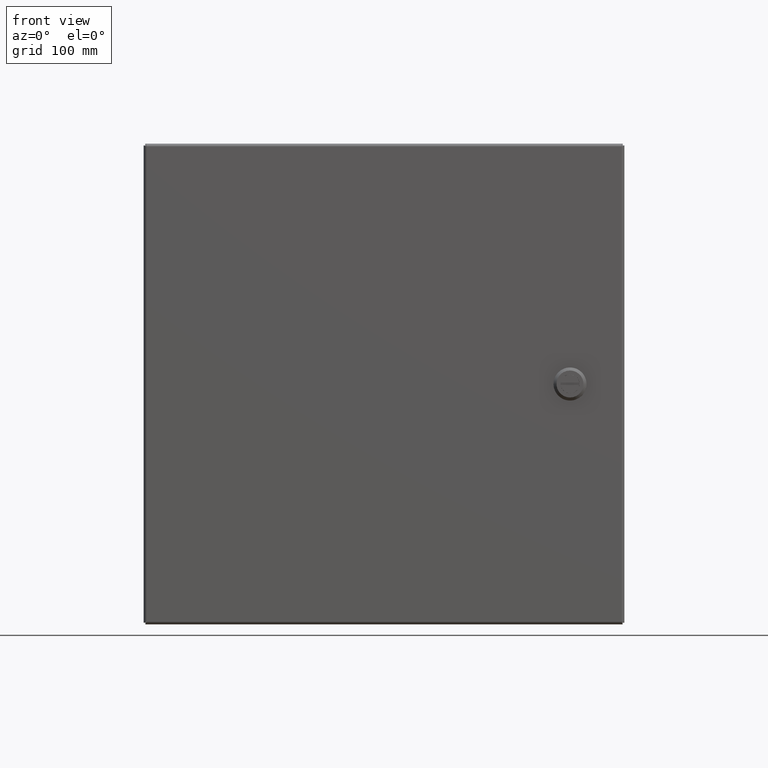
[diagram: clean part render]
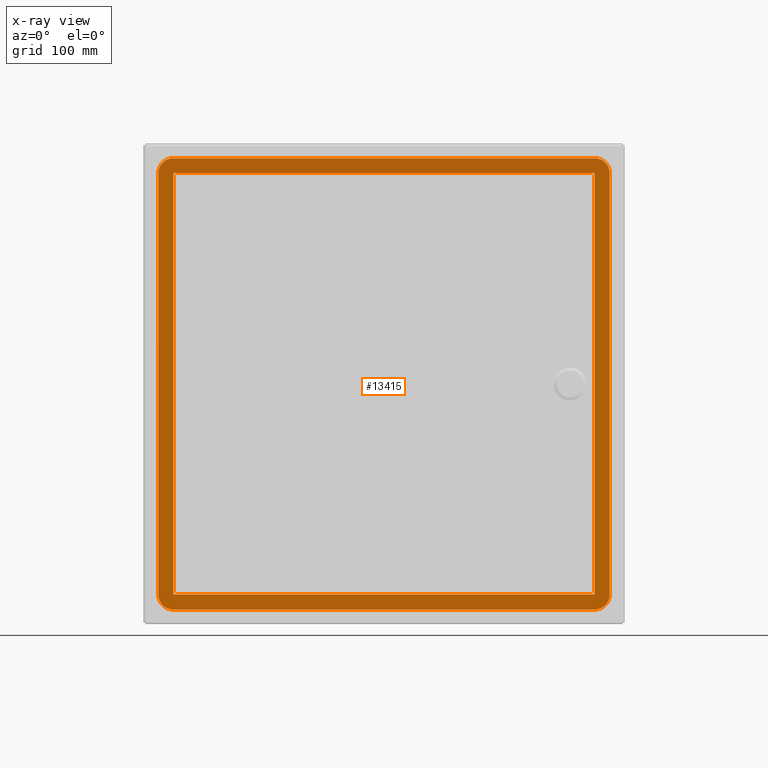
[diagram: x-ray — body ghosted, one internal face saturated and labeled with its STEP entity id]
A machine part, front view, then the same camera in x-ray: the body is ghosted and one INTERNAL B-rep face — a face not visible from any outside direction — is saturated and labeled: STEP entity #13415.
In plain terms, the highlighted planar face has unit normal (-0, -1, -0).
Its self-contained STEP definition (entity closure, byte-faithful):
#87 = CARTESIAN_POINT ( 'NONE',  ( -7.511500000000118860, -8.764000000000001123, 7.011500000000038924 ) ) ;
#237 = ORIENTED_EDGE ( 'NONE', *, *, #7801, .T. ) ;
#320 = CARTESIAN_POINT ( 'NONE',  ( 7.011500000000078003, -8.764000000000002899, 7.011499999999961652 ) ) ;
#414 = LINE ( 'NONE', #17797, #2215 ) ;
#735 = AXIS2_PLACEMENT_3D ( 'NONE', #15176, #6623, #15412 ) ;
#1107 = AXIS2_PLACEMENT_3D ( 'NONE', #320, #8739, #13534 ) ;
#1111 = VERTEX_POINT ( 'NONE', #19630 ) ;
#1143 = VECTOR ( 'NONE', #21447, 39.37007874015748143 ) ;
#1185 = AXIS2_PLACEMENT_3D ( 'NONE', #10448, #17222, #6991 ) ;
#1288 = EDGE_CURVE ( 'NONE', #2694, #11097, #3061, .T. ) ;
#1366 = ORIENTED_EDGE ( 'NONE', *, *, #16246, .T. ) ;
#1532 = FACE_BOUND ( 'NONE', #20458, .T. ) ;
#2215 = VECTOR ( 'NONE', #3628, 39.37007874015748143 ) ;
#2453 = CARTESIAN_POINT ( 'NONE',  ( 7.511499999999961652, -8.764000000000002899, 7.011500000000040700 ) ) ;
#2600 = CIRCLE ( 'NONE', #14629, 0.5000000000000444089 ) ;
#2694 = VERTEX_POINT ( 'NONE', #4901 ) ;
#2728 = ORIENTED_EDGE ( 'NONE', *, *, #21304, .T. ) ;
#2885 = LINE ( 'NONE', #14755, #7531 ) ;
#2974 = LINE ( 'NONE', #12967, #12463 ) ;
#3049 = AXIS2_PLACEMENT_3D ( 'NONE', #6687, #18602, #11496 ) ;
#3061 = CIRCLE ( 'NONE', #3049, 0.5000000000000444089 ) ;
#3628 = DIRECTION ( 'NONE',  ( 1.700360724987860073E-16, 3.998384937250164225E-17, -1.000000000000000000 ) ) ;
#3791 = ORIENTED_EDGE ( 'NONE', *, *, #5555, .T. ) ;
#4050 = VERTEX_POINT ( 'NONE', #11048 ) ;
#4614 = VECTOR ( 'NONE', #10788, 39.37007874015748143 ) ;
#4901 = CARTESIAN_POINT ( 'NONE',  ( -7.011500000000079780, -8.764000000000001123, 7.511500000000038924 ) ) ;
#5081 = LINE ( 'NONE', #87, #21092 ) ;
#5324 = VERTEX_POINT ( 'NONE', #15910 ) ;
#5555 = EDGE_CURVE ( 'NONE', #5324, #20802, #9204, .T. ) ;
#5778 = DIRECTION ( 'NONE',  ( 8.326672684688680216E-17, -1.000000000000000000, -3.998384937250280089E-17 ) ) ;
#5779 = VERTEX_POINT ( 'NONE', #10301 ) ;
#6275 = CARTESIAN_POINT ( 'NONE',  ( -7.511500000000118860, -8.764000000000001123, 7.511499999999999844 ) ) ;
#6373 = CARTESIAN_POINT ( 'NONE',  ( -7.511500000000119748, -8.764000000000001123, 7.011500000000059352 ) ) ;
#6598 = ORIENTED_EDGE ( 'NONE', *, *, #18963, .T. ) ;
#6623 = DIRECTION ( 'NONE',  ( -1.004302930252162036E-16, -1.000000000000000000, -3.998384937250166074E-17 ) ) ;
#6687 = CARTESIAN_POINT ( 'NONE',  ( -7.011500000000079780, -8.764000000000001123, 7.011500000000038924 ) ) ;
#6722 = DIRECTION ( 'NONE',  ( 1.700360724987860073E-16, 3.998384937250164225E-17, -1.000000000000000000 ) ) ;
#6991 = DIRECTION ( 'NONE',  ( 1.000000000000000000, 0.0000000000000000000, 0.0000000000000000000 ) ) ;
#7193 = CIRCLE ( 'NONE', #1185, 0.5000000000000444089 ) ;
#7397 = EDGE_CURVE ( 'NONE', #20802, #15439, #14216, .T. ) ;
#7531 = VECTOR ( 'NONE', #12889, 39.37007874015748143 ) ;
#7801 = EDGE_CURVE ( 'NONE', #15682, #4050, #2974, .T. ) ;
#8739 = DIRECTION ( 'NONE',  ( 8.326672684688680216E-17, -1.000000000000000000, -3.998384937250280089E-17 ) ) ;
#9204 = LINE ( 'NONE', #2453, #4614 ) ;
#9411 = CARTESIAN_POINT ( 'NONE',  ( 7.511500000000043364, -8.764000000000002899, 7.011499999999959876 ) ) ;
#9605 = DIRECTION ( 'NONE',  ( -1.000000000000000000, 1.004302930252162159E-16, -1.700360724987860073E-16 ) ) ;
#10003 = EDGE_CURVE ( 'NONE', #1111, #20023, #14446, .T. ) ;
#10301 = CARTESIAN_POINT ( 'NONE',  ( 7.011500000000105537, -8.764000000000001123, 7.011500000000044253 ) ) ;
#10448 = CARTESIAN_POINT ( 'NONE',  ( 7.011499999999922572, -8.764000000000002899, -7.011500000000038924 ) ) ;
#10788 = DIRECTION ( 'NONE',  ( -1.700360724987860073E-16, -3.998384937250164225E-17, 1.000000000000000000 ) ) ;
#10927 = ORIENTED_EDGE ( 'NONE', *, *, #7397, .T. ) ;
#10928 = CARTESIAN_POINT ( 'NONE',  ( -7.511500000000159716, -8.764000000000001123, -7.011500000000039812 ) ) ;
#11048 = CARTESIAN_POINT ( 'NONE',  ( 7.011499999999923460, -8.764000000000002899, -7.511500000000089550 ) ) ;
#11097 = VERTEX_POINT ( 'NONE', #6373 ) ;
#11215 = CARTESIAN_POINT ( 'NONE',  ( -7.011500000000132182, -8.764000000000001123, 7.011500000000074451 ) ) ;
#11314 = ORIENTED_EDGE ( 'NONE', *, *, #20158, .T. ) ;
#11363 = DIRECTION ( 'NONE',  ( 1.000000000000000000, -1.004302930252162159E-16, 1.700360724987860073E-16 ) ) ;
#11496 = DIRECTION ( 'NONE',  ( 1.000000000000000000, 0.0000000000000000000, 0.0000000000000000000 ) ) ;
#11807 = LINE ( 'NONE', #13581, #20960 ) ;
#11861 = PLANE ( 'NONE',  #735 ) ;
#12322 = EDGE_CURVE ( 'NONE', #11097, #17380, #5081, .T. ) ;
#12463 = VECTOR ( 'NONE', #18060, 39.37007874015748143 ) ;
#12559 = DIRECTION ( 'NONE',  ( 1.000000000000000000, 0.0000000000000000000, 0.0000000000000000000 ) ) ;
#12773 = CARTESIAN_POINT ( 'NONE',  ( -7.511500000000117083, -8.764000000000001123, -7.011500000000119748 ) ) ;
#12889 = DIRECTION ( 'NONE',  ( -1.700360724987860073E-16, -3.998384937250164225E-17, 1.000000000000000000 ) ) ;
#12910 = ORIENTED_EDGE ( 'NONE', *, *, #18826, .T. ) ;
#12967 = CARTESIAN_POINT ( 'NONE',  ( -7.511500000000117083, -8.764000000000001123, -7.511500000000079780 ) ) ;
#13415 = ADVANCED_FACE ( 'NONE', ( #1532, #14961 ), #11861, .T. ) ;
#13534 = DIRECTION ( 'NONE',  ( 1.000000000000000000, 0.0000000000000000000, 0.0000000000000000000 ) ) ;
#13581 = CARTESIAN_POINT ( 'NONE',  ( -7.511500000000118860, -8.764000000000001123, 7.011500000000078003 ) ) ;
#13776 = EDGE_LOOP ( 'NONE', ( #2728, #14680, #21877, #21350, #237, #12910, #3791, #10927 ) ) ;
#14100 = CARTESIAN_POINT ( 'NONE',  ( -7.011500000000155275, -8.764000000000001123, -7.511500000000090438 ) ) ;
#14112 = CARTESIAN_POINT ( 'NONE',  ( -7.011500000000156163, -8.764000000000001123, -7.011500000000040700 ) ) ;
#14216 = CIRCLE ( 'NONE', #1107, 0.5000000000000444089 ) ;
#14446 = LINE ( 'NONE', #12773, #1143 ) ;
#14629 = AXIS2_PLACEMENT_3D ( 'NONE', #14112, #5778, #12559 ) ;
#14666 = CARTESIAN_POINT ( 'NONE',  ( 7.011500000000078003, -8.764000000000002899, 7.511500000000022048 ) ) ;
#14680 = ORIENTED_EDGE ( 'NONE', *, *, #1288, .T. ) ;
#14755 = CARTESIAN_POINT ( 'NONE',  ( -7.011500000000197907, -8.764000000000001123, 7.011500000000038924 ) ) ;
#14961 = FACE_OUTER_BOUND ( 'NONE', #13776, .T. ) ;
#15176 = CARTESIAN_POINT ( 'NONE',  ( -7.511500000000118860, -8.764000000000001123, 7.011500000000038924 ) ) ;
#15412 = DIRECTION ( 'NONE',  ( 1.000000000000000000, -1.004302930252162159E-16, 1.700360724987860073E-16 ) ) ;
#15439 = VERTEX_POINT ( 'NONE', #14666 ) ;
#15682 = VERTEX_POINT ( 'NONE', #14100 ) ;
#15910 = CARTESIAN_POINT ( 'NONE',  ( 7.511499999999974087, -8.764000000000002899, -7.011500000000038924 ) ) ;
#16246 = EDGE_CURVE ( 'NONE', #18926, #5779, #11807, .T. ) ;
#17222 = DIRECTION ( 'NONE',  ( 8.326672684688680216E-17, -1.000000000000000000, -3.998384937250280089E-17 ) ) ;
#17380 = VERTEX_POINT ( 'NONE', #10928 ) ;
#17797 = CARTESIAN_POINT ( 'NONE',  ( 7.011500000000117083, -8.764000000000002899, 7.011500000000040700 ) ) ;
#18060 = DIRECTION ( 'NONE',  ( 1.000000000000000000, -1.004302930252162159E-16, 1.700360724987860073E-16 ) ) ;
#18602 = DIRECTION ( 'NONE',  ( 8.326672684688680216E-17, -1.000000000000000000, -3.998384937250280089E-17 ) ) ;
#18826 = EDGE_CURVE ( 'NONE', #4050, #5324, #7193, .T. ) ;
#18926 = VERTEX_POINT ( 'NONE', #11215 ) ;
#18960 = ORIENTED_EDGE ( 'NONE', *, *, #10003, .T. ) ;
#18963 = EDGE_CURVE ( 'NONE', #20023, #18926, #2885, .T. ) ;
#19630 = CARTESIAN_POINT ( 'NONE',  ( 7.011499999999998956, -8.764000000000001123, -7.011500000000086885 ) ) ;
#20023 = VERTEX_POINT ( 'NONE', #21830 ) ;
#20158 = EDGE_CURVE ( 'NONE', #5779, #1111, #414, .T. ) ;
#20338 = VECTOR ( 'NONE', #9605, 39.37007874015748143 ) ;
#20458 = EDGE_LOOP ( 'NONE', ( #1366, #11314, #18960, #6598 ) ) ;
#20665 = EDGE_CURVE ( 'NONE', #17380, #15682, #2600, .T. ) ;
#20802 = VERTEX_POINT ( 'NONE', #9411 ) ;
#20960 = VECTOR ( 'NONE', #11363, 39.37007874015748143 ) ;
#21092 = VECTOR ( 'NONE', #6722, 39.37007874015748143 ) ;
#21304 = EDGE_CURVE ( 'NONE', #15439, #2694, #21508, .T. ) ;
#21350 = ORIENTED_EDGE ( 'NONE', *, *, #20665, .T. ) ;
#21447 = DIRECTION ( 'NONE',  ( -1.000000000000000000, 1.004302930252162159E-16, -1.700360724987860073E-16 ) ) ;
#21508 = LINE ( 'NONE', #6275, #20338 ) ;
#21830 = CARTESIAN_POINT ( 'NONE',  ( -7.011500000000183697, -8.764000000000001123, -7.011500000000093991 ) ) ;
#21877 = ORIENTED_EDGE ( 'NONE', *, *, #12322, .T. ) ;